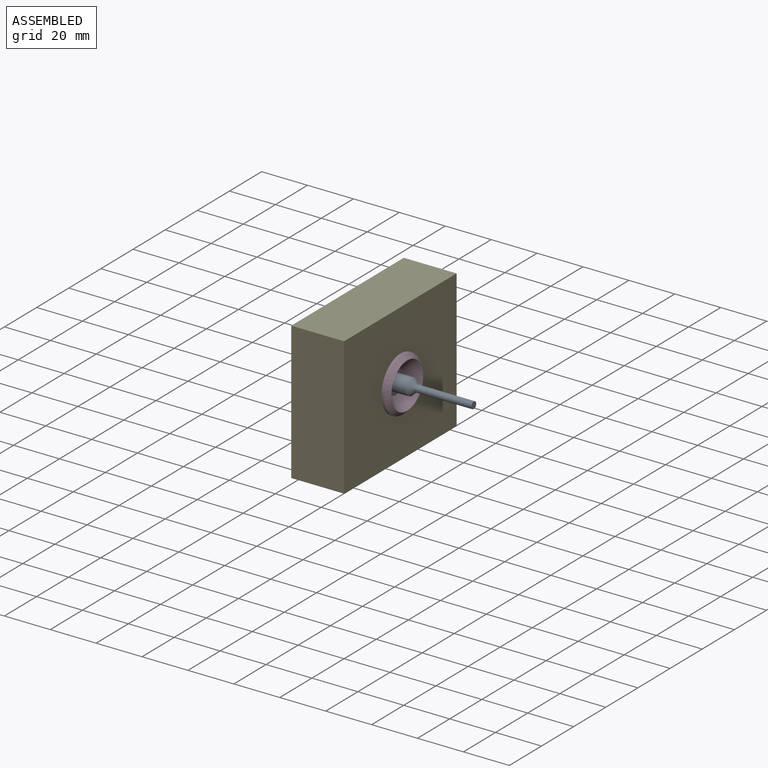
[diagram: assembled view]
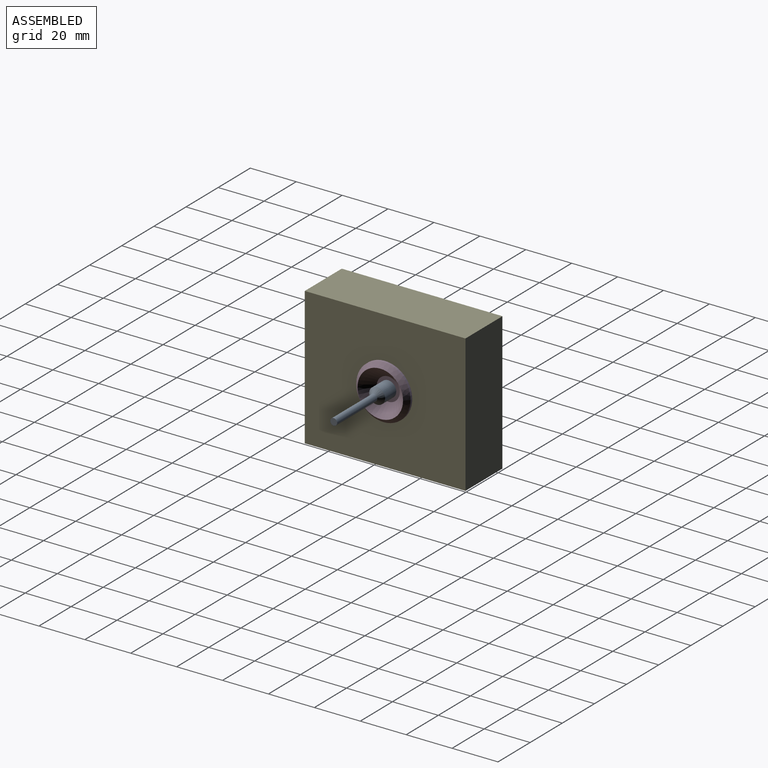
[diagram: assembled view, second angle]
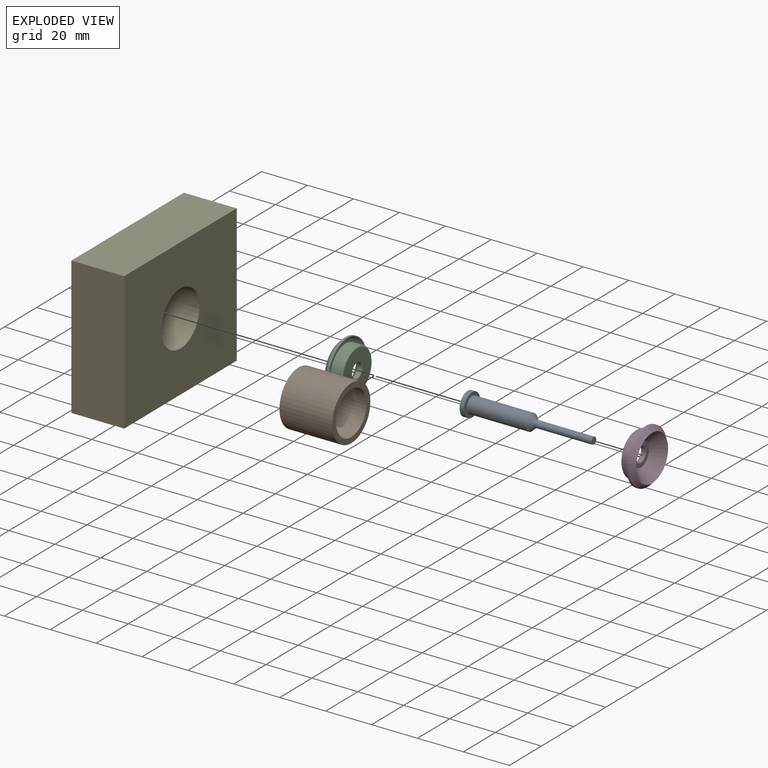
[diagram: exploded view]
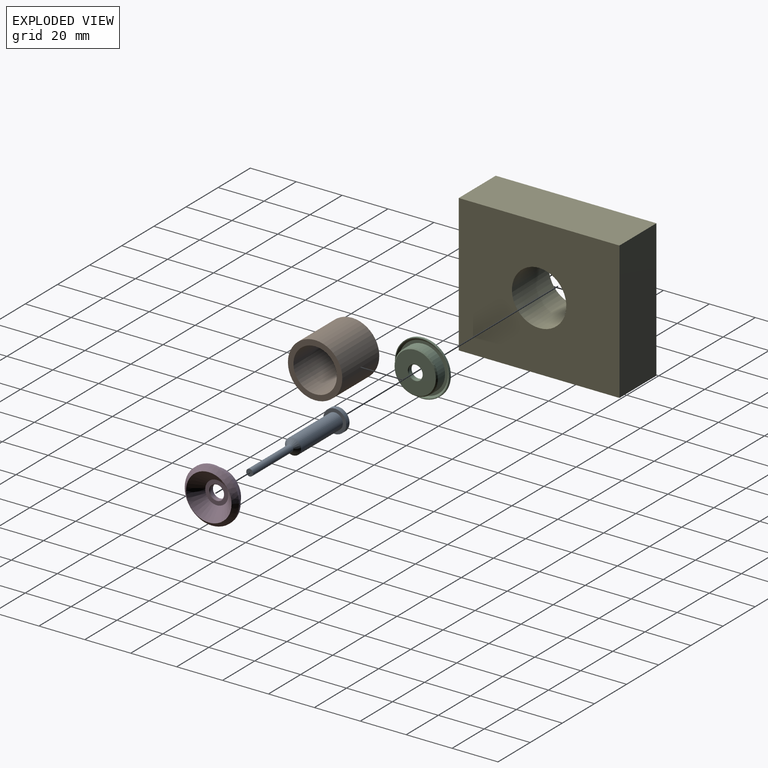
[diagram: exploded view, second angle]
ASSEMBLY  parts=5 mates=6
PART A: 9 faces, bbox 10x10x55 mm
  f0: cylinder r=5mm len=10mm, axis (0,0,-1), area 62.8mm2, adj f1,f2
  f1: plane 10x10mm, normal (0,0,1), area 40.1mm2, adj f0,f3
  f2: plane 10x10mm, normal (0,0,-1), area 71.5mm2, adj f0,f7
  f3: cylinder r=3.5mm len=26mm, axis (0,0,-1), area 571.8mm2, adj f1,f6
  f4: cylinder r=1.5mm len=25mm, axis (0,0,-1), area 235.6mm2, adj f5,f6
  f5: plane 3x3mm, normal (0,0,1), area 7.1mm2, adj f4
  f6: cone r=1.5mm half-angle=45deg, axis (0,0,-1), area 44.4mm2, adj f3,f4
  f7: cylinder r=1.5mm len=3mm, axis (0,0,-1), area 14.1mm2, adj f2,f8
  f8: sphere r=1.5mm, area 14.1mm2, adj f7
PART B: 4 faces, bbox 23.7x23.7x23 mm
  f0: cylinder r=11.85mm len=23.7mm, axis (0,0,-1), area 1712.5mm2, adj f1,f2
  f1: plane 23.7x23.7mm, normal (0,0,-1), area 160.6mm2, adj f0,f3
  f2: plane 23.7x23.7mm, normal (0,0,1), area 160.6mm2, adj f0,f3
  f3: cylinder r=9.45mm len=23mm, axis (0,0,1), area 1365.7mm2, adj f1,f2
PART C: 14 faces, bbox 23.7x23.7x7.1 mm
  f0: cylinder r=3.05mm len=6.1mm, axis (0,0,1), area 34.5mm2, adj f12,f13
  f1: cylinder r=11.85mm len=23.7mm, axis (0,0,-1), area 74.5mm2, adj f2,f9
  f2: plane 23.7x23.7mm, normal (0,0,1), area 25.7mm2, adj f1,f4
  f3: plane 21.4x21.4mm, normal (0,0,1), area 79.1mm2, adj f4,f5
  f4: cone r=10.7mm half-angle=45deg, axis (0,0,1), area 78.9mm2, adj f2,f3
  f5: cylinder r=9.45mm len=18.9mm, axis (0,0,-1), area 254.9mm2, adj f3,f8
  f6: plane 17.9x17.9mm, normal (0,0,1), area 218.5mm2, adj f7,f12
  f7: cone r=8.95mm half-angle=45deg, axis (0,0,-1), area 28.7mm2, adj f6,f8
  f8: torus R=8.95mm, axis (0,0,1), area 23.2mm2, adj f5,f7
  f9: cone r=11.85mm half-angle=45deg, axis (0,0,1), area 186.2mm2, adj f1,f11
  f10: plane 10x10mm, normal (0,0,-1), area 45.4mm2, adj f11,f13
  f11: cone r=5mm half-angle=45deg, axis (0,0,-1), area 326.6mm2, adj f9,f10
  f12: cone r=3.05mm half-angle=45deg, axis (0,0,1), area 5.6mm2, adj f0,f6
  f13: cone r=3.25mm half-angle=45deg, axis (0,0,-1), area 5.6mm2, adj f0,f10
PART D: same geometry as C
PART E: 7 faces, bbox 23x70x60 mm
  f0: plane 70x60mm, normal (-1,0,0), area 3758.8mm2, adj f1,f3,f4,f5,f6
  f1: plane 60x23mm, normal (0,-1,0), area 1380mm2, adj f0,f2,f4,f5
  f2: plane 70x60mm, normal (1,0,0), area 3758.8mm2, adj f1,f3,f4,f5,f6
  f3: plane 60x23mm, normal (0,1,0), area 1380mm2, adj f0,f2,f4,f5
  f4: plane 70x23mm, normal (0,0,1), area 1610mm2, adj f0,f1,f2,f3
  f5: plane 70x23mm, normal (0,0,-1), area 1610mm2, adj f0,f1,f2,f3
  f6: cylinder r=11.85mm len=23.7mm, axis (-1,0,0), area 1712.5mm2, adj f0,f2
PLACE A rot(axis=(0.71,0,0.71),180deg) t=(-160.9,-33.73,50.58)mm
PLACE B rot(axis=(0.71,0,-0.71),180deg) t=(-137.9,-33.73,50.58)mm
PLACE C rot(axis=(0.58,0.58,0.58),120deg) t=(-163.9,-33.73,50.58)mm
PLACE D rot(axis=(0.58,-0.58,-0.58),120deg) t=(-134.82,-33.73,50.58)mm
PLACE E rot(axis=(0,0,1),180deg) t=(-137.9,1.27,20.58)mm
MATE fastened C.f1 <-> E.f6  axis (1,0,0) through (-160.9,-33.73,50.58)mm
MATE fastened B.f0 <-> E.f6  axis (1,0,0) through (-137.9,-33.73,50.58)mm
MATE fastened A.f4 <-> C.f11  axis (1,0,0) through (-158.9,-33.73,50.58)mm
MATE cylindrical D.f5 <-> B.f3  axis (-1,0,0) through (-142.02,-33.73,50.58)mm
MATE cylindrical E.f6 <-> B.f0  axis (1,0,0) through (-149.4,-33.73,50.58)mm
MATE cylindrical C.f5 <-> B.f3  axis (-1,0,0) through (-159.56,-33.73,50.58)mm
